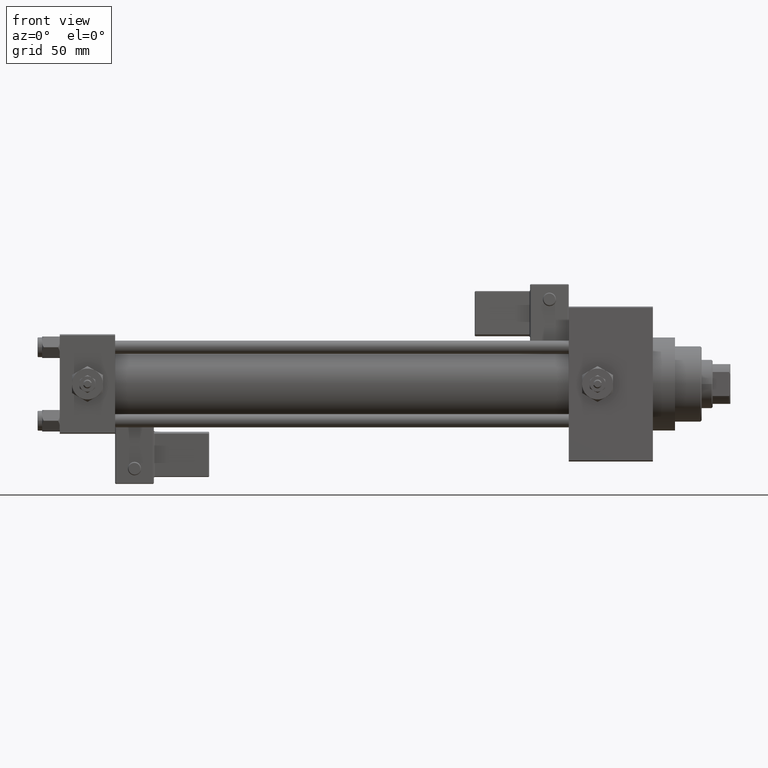
[diagram: clean part render]
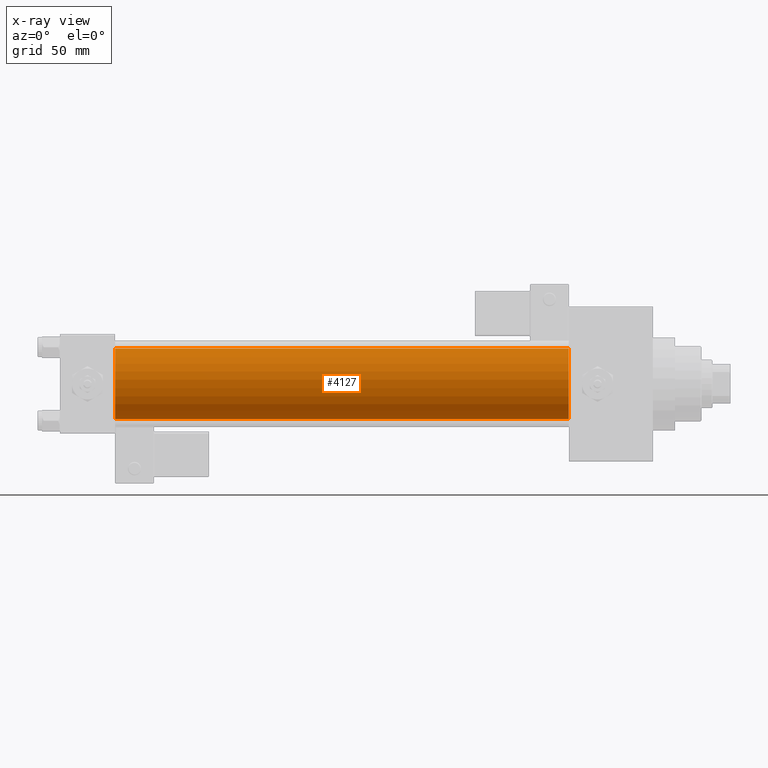
[diagram: x-ray — body ghosted, one internal face saturated and labeled with its STEP entity id]
A machine part, front view, then the same camera in x-ray: the body is ghosted and one INTERNAL B-rep face — a face not visible from any outside direction — is saturated and labeled: STEP entity #4127.
In plain terms, the highlighted cylindrical surface (edge-blend (fillet) strip) has radius 16 mm, axis along (-1, -0, -0).
Its self-contained STEP definition (entity closure, byte-faithful):
#131 = VERTEX_POINT ( 'NONE', #7530 ) ;
#2146 = DIRECTION ( 'NONE',  ( 0.000000000000000000, 0.000000000000000000, 1.000000000000000000 ) ) ;
#2397 = CYLINDRICAL_SURFACE ( 'NONE', #14121, 16.00000000000000000 ) ;
#4127 = ADVANCED_FACE ( 'NONE', ( #25803 ), #2397, .F. ) ;
#6656 = DIRECTION ( 'NONE',  ( 1.000000000000000000, 0.000000000000000000, 0.000000000000000000 ) ) ;
#6990 = DIRECTION ( 'NONE',  ( -1.000000000000000000, -0.000000000000000000, -0.000000000000000000 ) ) ;
#7530 = CARTESIAN_POINT ( 'NONE',  ( 229.9999999999999716, -2.602085213965210642E-15, 16.00000000000000000 ) ) ;
#10363 = VERTEX_POINT ( 'NONE', #22245 ) ;
#10412 = CIRCLE ( 'NONE', #46067, 16.00000000000000000 ) ;
#11856 = CARTESIAN_POINT ( 'NONE',  ( 229.9999999999999716, -6.426503353294460032E-16, -16.00000000000000000 ) ) ;
#14121 = AXIS2_PLACEMENT_3D ( 'NONE', #34614, #25545, #2146 ) ;
#15863 = VERTEX_POINT ( 'NONE', #35175 ) ;
#16432 = DIRECTION ( 'NONE',  ( 0.000000000000000000, 0.000000000000000000, -1.000000000000000000 ) ) ;
#17096 = EDGE_LOOP ( 'NONE', ( #18804, #29413, #41439, #38815 ) ) ;
#18804 = ORIENTED_EDGE ( 'NONE', *, *, #19886, .T. ) ;
#19648 = LINE ( 'NONE', #11856, #21159 ) ;
#19886 = EDGE_CURVE ( 'NONE', #131, #10363, #10412, .T. ) ;
#21159 = VECTOR ( 'NONE', #42758, 1000.000000000000000 ) ;
#22245 = CARTESIAN_POINT ( 'NONE',  ( 229.9999999999999716, -6.426503353294460032E-16, -16.00000000000000000 ) ) ;
#23569 = CARTESIAN_POINT ( 'NONE',  ( 25.00000000000000000, -6.426503353294460032E-16, -16.00000000000000000 ) ) ;
#23802 = AXIS2_PLACEMENT_3D ( 'NONE', #51227, #6656, #16432 ) ;
#25545 = DIRECTION ( 'NONE',  ( -1.000000000000000000, -0.000000000000000000, -0.000000000000000000 ) ) ;
#25803 = FACE_OUTER_BOUND ( 'NONE', #17096, .T. ) ;
#26892 = DIRECTION ( 'NONE',  ( 0.000000000000000000, 0.000000000000000000, -1.000000000000000000 ) ) ;
#29413 = ORIENTED_EDGE ( 'NONE', *, *, #33210, .T. ) ;
#29620 = VECTOR ( 'NONE', #6990, 1000.000000000000000 ) ;
#33210 = EDGE_CURVE ( 'NONE', #10363, #43075, #19648, .T. ) ;
#34614 = CARTESIAN_POINT ( 'NONE',  ( 229.9999999999999716, -2.602085213965210642E-15, 0.000000000000000000 ) ) ;
#35175 = CARTESIAN_POINT ( 'NONE',  ( 25.00000000000000000, -2.602085213965210642E-15, 16.00000000000000000 ) ) ;
#38815 = ORIENTED_EDGE ( 'NONE', *, *, #40992, .F. ) ;
#39650 = EDGE_CURVE ( 'NONE', #15863, #43075, #46181, .T. ) ;
#40992 = EDGE_CURVE ( 'NONE', #131, #15863, #51357, .T. ) ;
#41439 = ORIENTED_EDGE ( 'NONE', *, *, #39650, .F. ) ;
#42758 = DIRECTION ( 'NONE',  ( -1.000000000000000000, -0.000000000000000000, -0.000000000000000000 ) ) ;
#43075 = VERTEX_POINT ( 'NONE', #23569 ) ;
#46067 = AXIS2_PLACEMENT_3D ( 'NONE', #47110, #46604, #26892 ) ;
#46181 = CIRCLE ( 'NONE', #23802, 16.00000000000000000 ) ;
#46205 = CARTESIAN_POINT ( 'NONE',  ( 229.9999999999999716, -2.602085213965210642E-15, 16.00000000000000000 ) ) ;
#46604 = DIRECTION ( 'NONE',  ( 1.000000000000000000, 0.000000000000000000, 0.000000000000000000 ) ) ;
#47110 = CARTESIAN_POINT ( 'NONE',  ( 229.9999999999999716, -2.602085213965210642E-15, 0.000000000000000000 ) ) ;
#51227 = CARTESIAN_POINT ( 'NONE',  ( 25.00000000000000000, -2.602085213965210642E-15, 0.000000000000000000 ) ) ;
#51357 = LINE ( 'NONE', #46205, #29620 ) ;